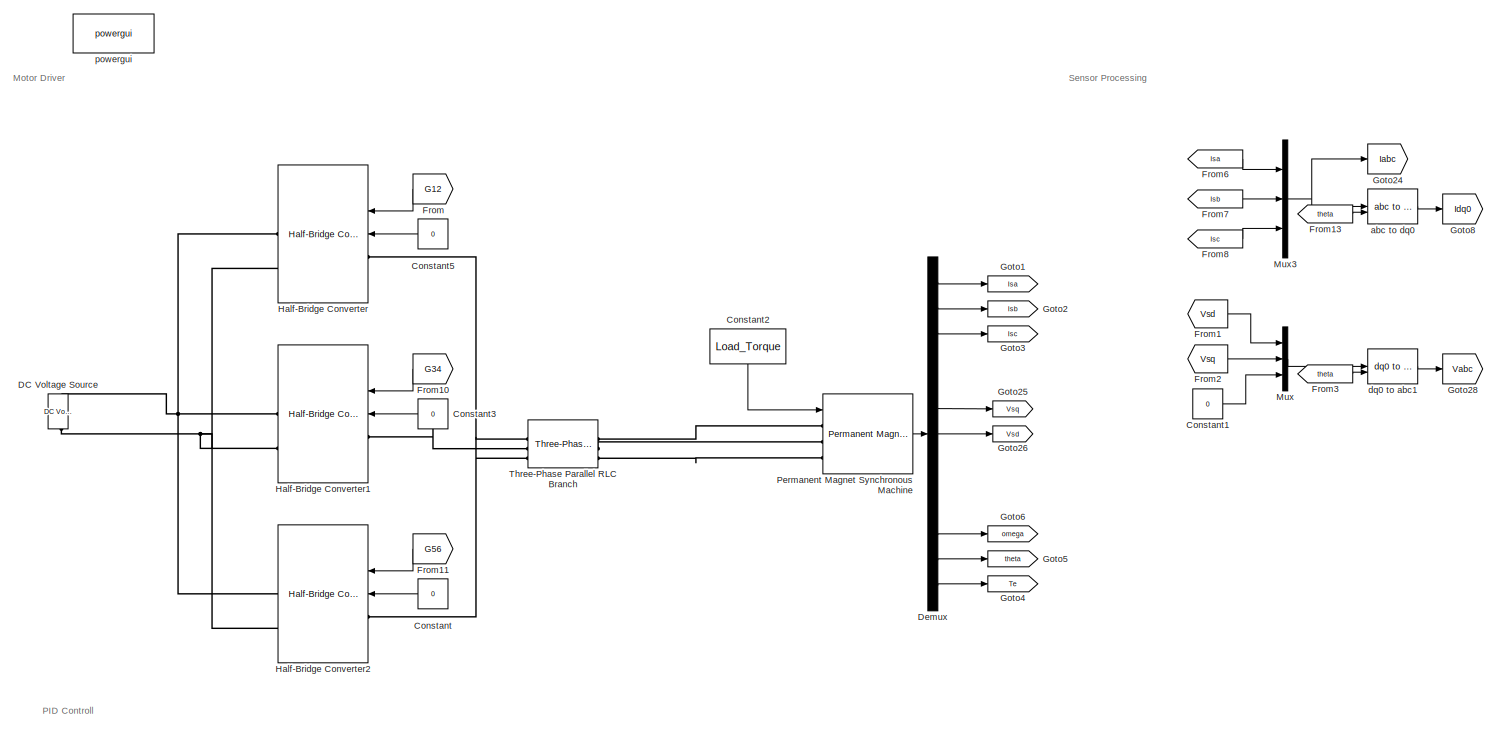
[diagram: root canvas - part 1/2, full width, top band]
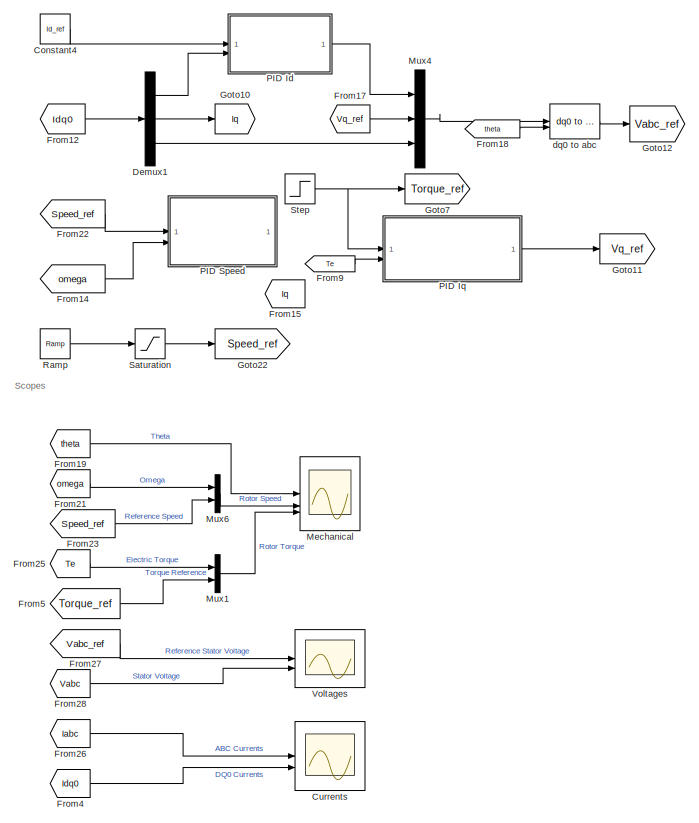
[diagram: root canvas - part 2/2, bottom left region]
MODEL slx_5c67385ad40d
KIND model
CONFIG AbsTol = auto
CONFIG EnableMultiTasking = off
CONFIG FixedStep = auto
CONFIG InitFcn = MotorSimulationParams
CONFIG MaxStep = auto
CONFIG MinStep = auto
CONFIG RelTol = 1e-3
CONFIG SampleTimeConstraint = Unconstrained
CONFIG SolverName = VariableStepAuto
CONFIG StartTime = 0.0
CONFIG StopTime = 2
BLOCK [Constant] Constant
  NameLocation = top
  Value = 0
BLOCK [Constant] Constant1
  Value = 0
BLOCK [Constant] Constant2
  NameLocation = left
  Value = Load_Torque
BLOCK [Constant] Constant3
  NameLocation = top
  Value = 0
BLOCK [Constant] Constant4
  Value = Id_ref
BLOCK [Constant] Constant5
  NameLocation = top
  Value = 0
BLOCK [Scope] Currents
  Floating = off
  NumInputPorts = 2
  ScopeSpecificationString = Simulink.scopes.TimeScopeBlockCfg('CurrentConfiguration', extmgr.ConfigurationSet(extmgr.Configuration('Core','General UI',true),extmgr.Configuration('Core','Source UI',true),extmgr.Configuration('Sources','WiredSimulink',true,'DataLoggingVariableName','ScopeData1'),extmgr.Configuration('Visuals','Time Domain',true,'SerializedDisplays',{struct('MinYLimReal','-1785.05306','MaxYLimReal','1271.89158'...<+2413ch>
BLOCK [Reference] DC Voltage Source  REF=spsDCVoltageSourceLib/DC Voltage Source
  LibrarySourceBlock = sps_lib/Sources/DC Voltage Source
  SourceBlock = spsDCVoltageSourceLib/DC Voltage Source
  SourceType = DC Voltage Source
BLOCK [Demux] Demux
  Outputs = 13
BLOCK [Demux] Demux1
  Outputs = 3
BLOCK [From] From
  GotoTag = G12
  NameLocation = top
BLOCK [From] From1
  GotoTag = Vsd
BLOCK [From] From10
  GotoTag = G34
  NameLocation = top
BLOCK [From] From11
  GotoTag = G56
  NameLocation = top
BLOCK [From] From12
  GotoTag = Idq0
BLOCK [From] From13
  GotoTag = theta
BLOCK [From] From14
  Commented = on
  GotoTag = omega
BLOCK [From] From15
  Commented = on
  GotoTag = Iq
BLOCK [From] From17
  GotoTag = Vq_ref
BLOCK [From] From18
  GotoTag = theta
BLOCK [From] From19
  GotoTag = theta
BLOCK [From] From2
  GotoTag = Vsq
BLOCK [From] From21
  GotoTag = omega
BLOCK [From] From22
  Commented = on
  GotoTag = Speed_ref
BLOCK [From] From23
  GotoTag = Speed_ref
BLOCK [From] From25
  GotoTag = Te
BLOCK [From] From26
  GotoTag = Iabc
BLOCK [From] From27
  GotoTag = Vabc_ref
BLOCK [From] From28
  GotoTag = Vabc
BLOCK [From] From3
  GotoTag = theta
BLOCK [From] From4
  GotoTag = Idq0
BLOCK [From] From5
  GotoTag = Torque_ref
BLOCK [From] From6
  GotoTag = Isa
BLOCK [From] From7
  GotoTag = Isb
BLOCK [From] From8
  GotoTag = Isc
BLOCK [From] From9
  GotoTag = Te
BLOCK [Goto] Goto1
  GotoTag = Isa
BLOCK [Goto] Goto10
  GotoTag = Iq
BLOCK [Goto] Goto11
  GotoTag = Vq_ref
BLOCK [Goto] Goto12
  GotoTag = Vabc_ref
BLOCK [Goto] Goto2
  GotoTag = Isb
BLOCK [Goto] Goto22
  GotoTag = Speed_ref
BLOCK [Goto] Goto24
  GotoTag = Iabc
BLOCK [Goto] Goto25
  GotoTag = Vsq
BLOCK [Goto] Goto26
  GotoTag = Vsd
BLOCK [Goto] Goto28
  GotoTag = Vabc
BLOCK [Goto] Goto3
  GotoTag = Isc
BLOCK [Goto] Goto4
  GotoTag = Te
BLOCK [Goto] Goto5
  GotoTag = theta
BLOCK [Goto] Goto6
  GotoTag = omega
BLOCK [Goto] Goto7
  GotoTag = Torque_ref
BLOCK [Goto] Goto8
  GotoTag = Idq0
BLOCK [Reference] Half-Bridge Converter  REF=spsHalfBridgeConverterLib/Half-Bridge Converter
  LibrarySourceBlock = sps_lib/Power Electronics/Half-Bridge Converter
  NameLocation = top
  SourceBlock = spsHalfBridgeConverterLib/Half-Bridge Converter
  SourceType = Half-Bridge Converter
BLOCK [Reference] Half-Bridge Converter1  REF=spsHalfBridgeConverterLib/Half-Bridge Converter
  LibrarySourceBlock = sps_lib/Power Electronics/Half-Bridge Converter
  NameLocation = top
  SourceBlock = spsHalfBridgeConverterLib/Half-Bridge Converter
  SourceType = Half-Bridge Converter
BLOCK [Reference] Half-Bridge Converter2  REF=spsHalfBridgeConverterLib/Half-Bridge Converter
  LibrarySourceBlock = sps_lib/Power Electronics/Half-Bridge Converter
  NameLocation = top
  SourceBlock = spsHalfBridgeConverterLib/Half-Bridge Converter
  SourceType = Half-Bridge Converter
BLOCK [Scope] Mechanical
  Floating = off
  NumInputPorts = 3
  ScopeSpecificationString = Simulink.scopes.TimeScopeBlockCfg('CurrentConfiguration', extmgr.ConfigurationSet(extmgr.Configuration('Core','General UI',true),extmgr.Configuration('Core','Source UI',true),extmgr.Configuration('Sources','WiredSimulink',true,'DataLoggingVariableName','ScopeData1'),extmgr.Configuration('Visuals','Time Domain',true,'SerializedDisplays',{struct('MinYLimReal','-1.00000','MaxYLimReal','1.00000','YLab...<+3081ch>
BLOCK [Mux] Mux
  DisplayOption = bar
  Inputs = 3
BLOCK [Mux] Mux1
  DisplayOption = bar
  Inputs = 2
BLOCK [Mux] Mux3
  DisplayOption = bar
  Inputs = 3
BLOCK [Mux] Mux4
  DisplayOption = bar
  Inputs = 3
BLOCK [Mux] Mux6
  DisplayOption = bar
  Inputs = 2
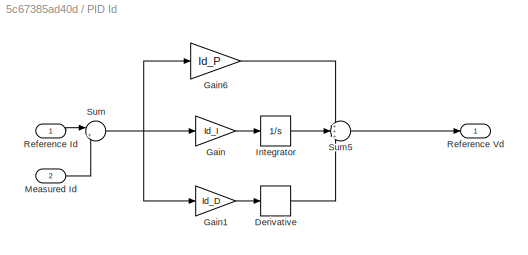
BLOCK [SubSystem] PID Id
BLOCK [Derivative] PID Id/Derivative
BLOCK [Gain] PID Id/Gain
  Gain = Id_I
BLOCK [Gain] PID Id/Gain1
  Gain = Id_D
BLOCK [Gain] PID Id/Gain6
  Gain = Id_P
BLOCK [Integrator] PID Id/Integrator
BLOCK [Inport] PID Id/Measured Id
  Port = 2
BLOCK [Inport] PID Id/Reference Id
BLOCK [Outport] PID Id/Reference Vd
BLOCK [Sum] PID Id/Sum
  Inputs = |+-
BLOCK [Sum] PID Id/Sum5
  Inputs = +++
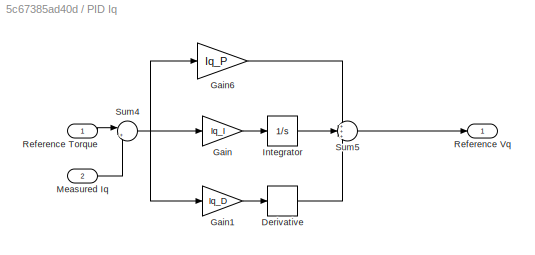
BLOCK [SubSystem] PID Iq
BLOCK [Derivative] PID Iq/Derivative
BLOCK [Gain] PID Iq/Gain
  Gain = Iq_I
BLOCK [Gain] PID Iq/Gain1
  Gain = Iq_D
BLOCK [Gain] PID Iq/Gain6
  Gain = Iq_P
BLOCK [Integrator] PID Iq/Integrator
BLOCK [Inport] PID Iq/Measured Iq
  Port = 2
BLOCK [Inport] PID Iq/Reference Torque
BLOCK [Outport] PID Iq/Reference Vq
  IconDisplay = Port number and signal name
BLOCK [Sum] PID Iq/Sum4
  Inputs = |+-
BLOCK [Sum] PID Iq/Sum5
  Inputs = +++
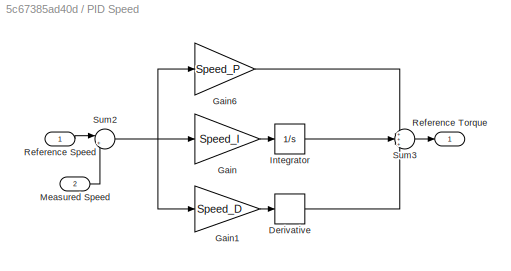
BLOCK [SubSystem] PID Speed
  Commented = on
BLOCK [Derivative] PID Speed/Derivative
BLOCK [Gain] PID Speed/Gain
  Gain = Speed_I
BLOCK [Gain] PID Speed/Gain1
  Gain = Speed_D
BLOCK [Gain] PID Speed/Gain6
  Gain = Speed_P
BLOCK [Integrator] PID Speed/Integrator
BLOCK [Inport] PID Speed/Measured Speed
  Port = 2
BLOCK [Inport] PID Speed/Reference Speed
BLOCK [Outport] PID Speed/Reference Torque
BLOCK [Sum] PID Speed/Sum2
  Inputs = |+-
BLOCK [Sum] PID Speed/Sum3
  Inputs = +++
BLOCK [Reference] Permanent Magnet Synchronous Machine  REF=spsPermanentMagnetSynchronousMachineLib/Permanent Magnet
Synchronous Machine
  LibrarySourceBlock = sps_lib/Electrical Machines/Permanent Magnet\nSynchronous Machine
  SourceBlock = spsPermanentMagnetSynchronousMachineLib/Permanent Magnet\nSynchronous Machine
  SourceType = Permanent Magnet Synchronous Machine
BLOCK [Reference] Ramp  REF=simulink/Sources/Ramp
  SourceBlock = simulink/Sources/Ramp
  SourceType = Ramp
BLOCK [Saturate] Saturation
  LowerLimit = -Speed_Ref
  UpperLimit = Speed_Ref
BLOCK [Step] Step
  After = Ref_Torque
  SampleTime = 0
  Time = 0.2
BLOCK [Reference] Three-Phase Parallel RLC Branch  REF=spsThreePhaseParallelRLCBranchLib/Three-Phase
Parallel RLC Branch
  AttributesFormatString = \n
  LibrarySourceBlock = sps_lib/Passives/Three-Phase\nParallel RLC Branch
  SourceBlock = spsThreePhaseParallelRLCBranchLib/Three-Phase\nParallel RLC Branch
  SourceType = Three-Phase Parallel RLC Branch
BLOCK [Scope] Voltages
  Floating = off
  NumInputPorts = 2
  ScopeSpecificationString = Simulink.scopes.TimeScopeBlockCfg('CurrentConfiguration', extmgr.ConfigurationSet(extmgr.Configuration('Core','General UI',true),extmgr.Configuration('Core','Source UI',true),extmgr.Configuration('Sources','WiredSimulink',true,'DataLoggingVariableName','ScopeData2'),extmgr.Configuration('Visuals','Time Domain',true,'SerializedDisplays',{struct('MinYLimReal','-1.22999','MaxYLimReal','1.04968','YLab...<+2682ch>
BLOCK [Reference] abc to dq0  REF=spsabctodq0Lib/abc to dq0
  LibrarySourceBlock = sps_lib/Control/abc to dq0
  SourceBlock = spsabctodq0Lib/abc to dq0
  SourceType = abc to dq0 Transformation
BLOCK [Reference] dq0 to abc  REF=spsdq0toabcLib/dq0 to abc
  LibrarySourceBlock = sps_lib/Control/dq0 to abc
  SourceBlock = spsdq0toabcLib/dq0 to abc
  SourceType = dq0 to abc Transformation
BLOCK [Reference] dq0 to abc1  REF=spsdq0toabcLib/dq0 to abc
  LibrarySourceBlock = sps_lib/Control/dq0 to abc
  SourceBlock = spsdq0toabcLib/dq0 to abc
  SourceType = dq0 to abc Transformation
BLOCK [Reference] powergui  REF=spspowerguiLib/powergui
  LibrarySourceBlock = sps_lib/powergui
  Priority = 1
  SourceBlock = spspowerguiLib/powergui
  SourceType = PSB option menu block
ANNOTATION (root): Motor Driver
ANNOTATION (root): PID Controll
ANNOTATION (root): Scopes
ANNOTATION (root): Sensor Processing
LINE Constant1:1 -> Mux:3
LINE Constant2:1 -> Permanent Magnet Synchronous Machine:1
LINE Constant3:1 -> Half-Bridge Converter1:2
LINE Constant4:1 -> PID Id:1
LINE Constant5:1 -> Half-Bridge Converter:2
LINE Constant:1 -> Half-Bridge Converter2:2
LINE Demux1:1 -> PID Id:2
LINE Demux1:2 -> Goto10:1
LINE Demux1:3 -> Mux4:3
LINE Demux:1 -> Goto1:1
LINE Demux:11 -> Goto6:1
LINE Demux:12 -> Goto5:1
LINE Demux:13 -> Goto4:1
LINE Demux:2 -> Goto2:1
LINE Demux:3 -> Goto3:1
LINE Demux:6 -> Goto25:1
LINE Demux:7 -> Goto26:1
LINE From10:1 -> Half-Bridge Converter1:1
LINE From11:1 -> Half-Bridge Converter2:1
LINE From12:1 -> Demux1:1
LINE From13:1 -> abc to dq0:2
LINE From14:1 -> PID Speed:2
LINE From17:1 -> Mux4:2
LINE From18:1 -> dq0 to abc:2
LINE From19:1 -> Mechanical:1
LINE From1:1 -> Mux:1
LINE From21:1 -> Mux6:1
LINE From22:1 -> PID Speed:1
LINE From23:1 -> Mux6:2
LINE From25:1 -> Mux1:1
LINE From26:1 -> Currents:1
LINE From27:1 -> Voltages:1
LINE From28:1 -> Voltages:2
LINE From2:1 -> Mux:2
LINE From3:1 -> dq0 to abc1:2
LINE From4:1 -> Currents:2
LINE From5:1 -> Mux1:2
LINE From6:1 -> Mux3:1
LINE From7:1 -> Mux3:2
LINE From8:1 -> Mux3:3
LINE From9:1 -> PID Iq:2
LINE From:1 -> Half-Bridge Converter:1
LINE Mux1:1 -> Mechanical:3
NET Mux3:1 -> Goto24:1, abc to dq0:1
LINE Mux4:1 -> dq0 to abc:1
LINE Mux6:1 -> Mechanical:2
LINE Mux:1 -> dq0 to abc1:1
LINE PID Id/Derivative:1 -> PID Id/Sum5:3
LINE PID Id/Gain1:1 -> PID Id/Derivative:1
LINE PID Id/Gain6:1 -> PID Id/Sum5:1
LINE PID Id/Gain:1 -> PID Id/Integrator:1
LINE PID Id/Integrator:1 -> PID Id/Sum5:2
LINE PID Id/Measured Id:1 -> PID Id/Sum:2
LINE PID Id/Reference Id:1 -> PID Id/Sum:1
LINE PID Id/Sum5:1 -> PID Id/Reference Vd:1
NET PID Id/Sum:1 -> PID Id/Gain1:1, PID Id/Gain6:1, PID Id/Gain:1
LINE PID Id:1 -> Mux4:1
LINE PID Iq/Derivative:1 -> PID Iq/Sum5:3
LINE PID Iq/Gain1:1 -> PID Iq/Derivative:1
LINE PID Iq/Gain6:1 -> PID Iq/Sum5:1
LINE PID Iq/Gain:1 -> PID Iq/Integrator:1
LINE PID Iq/Integrator:1 -> PID Iq/Sum5:2
LINE PID Iq/Measured Iq:1 -> PID Iq/Sum4:2
LINE PID Iq/Reference Torque:1 -> PID Iq/Sum4:1
NET PID Iq/Sum4:1 -> PID Iq/Gain1:1, PID Iq/Gain6:1, PID Iq/Gain:1
LINE PID Iq/Sum5:1 -> PID Iq/Reference Vq:1
LINE PID Iq:1 -> Goto11:1
LINE PID Speed/Derivative:1 -> PID Speed/Sum3:3
LINE PID Speed/Gain1:1 -> PID Speed/Derivative:1
LINE PID Speed/Gain6:1 -> PID Speed/Sum3:1
LINE PID Speed/Gain:1 -> PID Speed/Integrator:1
LINE PID Speed/Integrator:1 -> PID Speed/Sum3:2
LINE PID Speed/Measured Speed:1 -> PID Speed/Sum2:2
LINE PID Speed/Reference Speed:1 -> PID Speed/Sum2:1
NET PID Speed/Sum2:1 -> PID Speed/Gain1:1, PID Speed/Gain6:1, PID Speed/Gain:1
LINE PID Speed/Sum3:1 -> PID Speed/Reference Torque:1
LINE Permanent Magnet Synchronous Machine:1 -> Demux:1
LINE Ramp:1 -> Saturation:1
LINE Saturation:1 -> Goto22:1
NET Step:1 -> Goto7:1, PID Iq:1
LINE abc to dq0:1 -> Goto8:1
LINE dq0 to abc1:1 -> Goto28:1
LINE dq0 to abc:1 -> Goto12:1
PNET net1: DC Voltage Source:LConn1 -- Half-Bridge Converter1:RConn2 -- Half-Bridge Converter2:RConn2 -- Half-Bridge Converter:RConn2
PNET net2: DC Voltage Source:RConn1 -- Half-Bridge Converter1:RConn1 -- Half-Bridge Converter2:RConn1 -- Half-Bridge Converter:RConn1
PLINE Half-Bridge Converter1:LConn1 -- Three-Phase Parallel RLC Branch:LConn2
PLINE Half-Bridge Converter2:LConn1 -- Three-Phase Parallel RLC Branch:LConn3
PLINE Half-Bridge Converter:LConn1 -- Three-Phase Parallel RLC Branch:LConn1
PLINE Permanent Magnet Synchronous Machine:LConn1 -- Three-Phase Parallel RLC Branch:RConn1
PLINE Permanent Magnet Synchronous Machine:LConn2 -- Three-Phase Parallel RLC Branch:RConn2
PLINE Permanent Magnet Synchronous Machine:LConn3 -- Three-Phase Parallel RLC Branch:RConn3
note: NET lines group one-source signal fan-out (src -> all destinations, sorted); 1:1 wires keep LINE; PNET lines group multi-terminal physical nets as a canonical sorted terminal list (undirected conserving connections); 2-terminal nets keep the pairwise PLINE form
